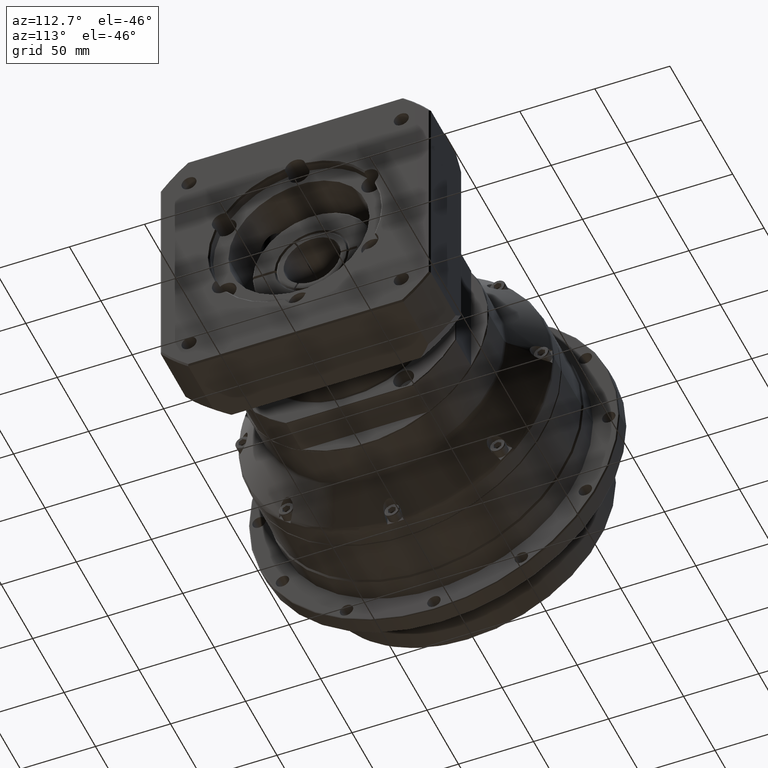
[diagram: clean part render]
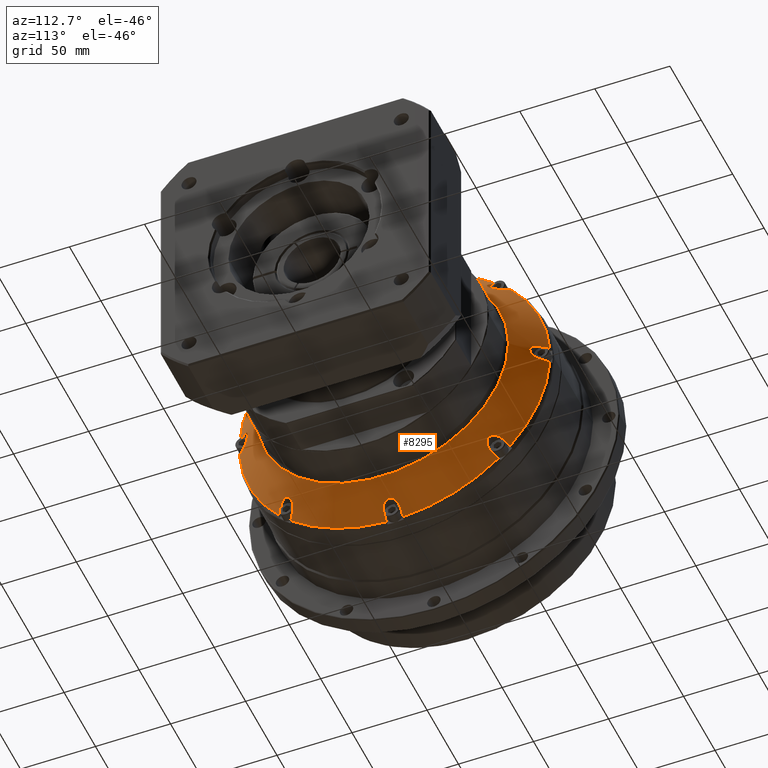
[diagram: same view with one face highlighted and labeled with its STEP entity id]
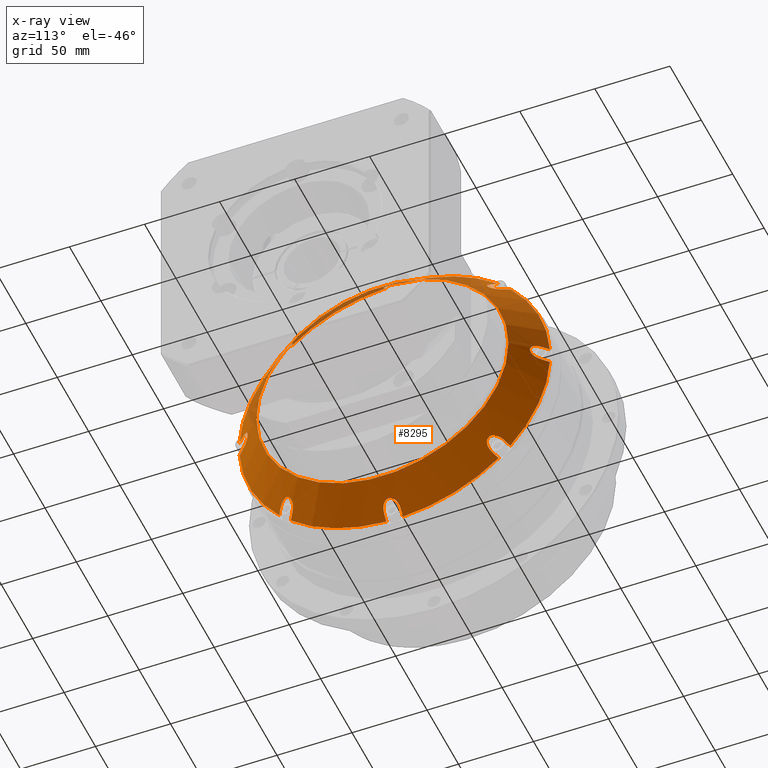
[diagram: x-ray of the same camera — body ghosted, the highlighted face saturated]
A machine part, auxiliary view. The second image highlights one B-rep face of the part: STEP entity #8295.
The next image is the same camera in x-ray: the body ghosted, the highlighted face saturated — about 6% of this face is hidden behind the body in this view.
In plain terms, the highlighted conical surface has half-angle 45 deg.
Its self-contained STEP definition (entity closure, byte-faithful):
#72=B_SPLINE_CURVE_WITH_KNOTS('',3,(#13886,#13887,#13888,#13889,#13890,
#13891,#13892,#13893,#13894,#13895,#13896,#13897,#13898,#13899,#13900,#13901,
#13902,#13903,#13904,#13905,#13906,#13907,#13908),.UNSPECIFIED.,.F.,.F.,
(4,3,2,2,2,2,2,2,2,2,4),(-0.0425009970683237,0.,0.289864522481326,0.579729044962652,
0.776643462004184,0.973557879045716,1.17047229608725,1.36738671312878,1.65725123561011,
1.94711575809143,1.98961675508284),.UNSPECIFIED.);
#74=B_SPLINE_CURVE_WITH_KNOTS('',3,(#13936,#13937,#13938,#13939,#13940,
#13941,#13942,#13943,#13944,#13945,#13946,#13947,#13948,#13949,#13950,#13951,
#13952,#13953,#13954,#13955,#13956,#13957,#13958),.UNSPECIFIED.,.F.,.F.,
(4,3,2,2,2,2,2,2,2,2,4),(-0.0425009970683224,0.,0.289864522481327,0.579729044962654,
0.776643462004186,0.973557879045718,1.17047229608725,1.36738671312878,1.65725123561011,
1.94711575809143,1.98961675508284),.UNSPECIFIED.);
#75=B_SPLINE_CURVE_WITH_KNOTS('',3,(#13971,#13972,#13973,#13974,#13975,
#13976,#13977,#13978,#13979,#13980,#13981,#13982,#13983,#13984,#13985,#13986,
#13987,#13988,#13989,#13990,#13991,#13992,#13993),.UNSPECIFIED.,.F.,.F.,
(4,3,2,2,2,2,2,2,2,2,4),(-0.0425009970683213,0.,0.289864522481326,0.579729044962653,
0.776643462004185,0.973557879045717,1.17047229608725,1.36738671312878,1.65725123561011,
1.94711575809143,1.98961675508284),.UNSPECIFIED.);
#76=B_SPLINE_CURVE_WITH_KNOTS('',3,(#14005,#14006,#14007,#14008,#14009,
#14010,#14011,#14012,#14013,#14014,#14015,#14016,#14017,#14018,#14019,#14020,
#14021,#14022,#14023,#14024,#14025,#14026,#14027),.UNSPECIFIED.,.F.,.F.,
(4,3,2,2,2,2,2,2,2,2,4),(-0.0425009969914009,0.,0.289864522481327,0.579729044962653,
0.776643462004185,0.973557879045718,1.17047229608725,1.36738671312878,1.65725123561011,
1.94711575809144,1.98961675508284),.UNSPECIFIED.);
#77=B_SPLINE_CURVE_WITH_KNOTS('',3,(#14039,#14040,#14041,#14042,#14043,
#14044,#14045,#14046,#14047,#14048,#14049,#14050,#14051,#14052,#14053,#14054,
#14055,#14056,#14057,#14058,#14059,#14060,#14061),.UNSPECIFIED.,.F.,.F.,
(4,3,2,2,2,2,2,2,2,2,4),(-0.042500997068313,0.,0.289864522481327,0.579729044962653,
0.776643462004186,0.973557879045718,1.17047229608725,1.36738671312878,1.65725123561011,
1.94711575809144,1.98961675508283),.UNSPECIFIED.);
#78=B_SPLINE_CURVE_WITH_KNOTS('',3,(#14073,#14074,#14075,#14076,#14077,
#14078,#14079,#14080,#14081,#14082,#14083,#14084,#14085,#14086,#14087,#14088,
#14089,#14090,#14091,#14092,#14093,#14094,#14095),.UNSPECIFIED.,.F.,.F.,
(4,3,2,2,2,2,2,2,2,2,4),(-0.042500996991396,0.,0.289864522481326,0.579729044962653,
0.776643462004185,0.973557879045718,1.17047229608725,1.36738671312878,1.65725123561011,
1.94711575809144,1.98961675508283),.UNSPECIFIED.);
#79=B_SPLINE_CURVE_WITH_KNOTS('',3,(#14107,#14108,#14109,#14110,#14111,
#14112,#14113,#14114,#14115,#14116,#14117,#14118,#14119,#14120,#14121,#14122,
#14123,#14124,#14125,#14126,#14127,#14128,#14129),.UNSPECIFIED.,.F.,.F.,
(4,3,2,2,2,2,2,2,2,2,4),(-0.0425009970683134,0.,0.289864522481327,0.579729044962654,
0.776643462004186,0.973557879045718,1.17047229608725,1.36738671312878,1.65725123561011,
1.94711575809144,1.98961675508283),.UNSPECIFIED.);
#80=B_SPLINE_CURVE_WITH_KNOTS('',3,(#14141,#14142,#14143,#14144,#14145,
#14146,#14147,#14148,#14149,#14150,#14151,#14152,#14153,#14154,#14155,#14156,
#14157,#14158,#14159,#14160,#14161,#14162,#14163),.UNSPECIFIED.,.F.,.F.,
(4,3,2,2,2,2,2,2,2,2,4),(-0.0425009969914008,0.,0.289864522481327,0.579729044962654,
0.776643462004186,0.973557879045718,1.17047229608725,1.36738671312878,1.65725123561011,
1.94711575809144,1.98961675508284),.UNSPECIFIED.);
#142=(
BOUNDED_CURVE()
B_SPLINE_CURVE(2,(#13869,#13870,#13871),.UNSPECIFIED.,.F.,.F.)
B_SPLINE_CURVE_WITH_KNOTS((3,3),(0.,0.504855050353772),.UNSPECIFIED.)
CURVE()
GEOMETRIC_REPRESENTATION_ITEM()
RATIONAL_B_SPLINE_CURVE((1.,1.0010044951809,1.00164285958987))
REPRESENTATION_ITEM('')
);
#143=(
BOUNDED_CURVE()
B_SPLINE_CURVE(2,(#13918,#13919,#13920),.UNSPECIFIED.,.F.,.F.)
B_SPLINE_CURVE_WITH_KNOTS((3,3),(2.26532710315228,2.77018215351428),
 .UNSPECIFIED.)
CURVE()
GEOMETRIC_REPRESENTATION_ITEM()
RATIONAL_B_SPLINE_CURVE((1.00164285958043,1.00100449517514,1.))
REPRESENTATION_ITEM('')
);
#144=(
BOUNDED_CURVE()
B_SPLINE_CURVE(2,(#13932,#13933,#13934),.UNSPECIFIED.,.F.,.F.)
B_SPLINE_CURVE_WITH_KNOTS((3,3),(0.,0.549633215561377),.UNSPECIFIED.)
CURVE()
GEOMETRIC_REPRESENTATION_ITEM()
RATIONAL_B_SPLINE_CURVE((1.,1.00018325234429,1.))
REPRESENTATION_ITEM('')
);
#145=(
BOUNDED_CURVE()
B_SPLINE_CURVE(2,(#13960,#13961,#13962),.UNSPECIFIED.,.F.,.F.)
B_SPLINE_CURVE_WITH_KNOTS((3,3),(0.,0.549633215561375),.UNSPECIFIED.)
CURVE()
GEOMETRIC_REPRESENTATION_ITEM()
RATIONAL_B_SPLINE_CURVE((1.,1.00018325715637,1.))
REPRESENTATION_ITEM('')
);
#146=(
BOUNDED_CURVE()
B_SPLINE_CURVE(2,(#13967,#13968,#13969),.UNSPECIFIED.,.F.,.F.)
B_SPLINE_CURVE_WITH_KNOTS((3,3),(0.,0.549633215561375),.UNSPECIFIED.)
CURVE()
GEOMETRIC_REPRESENTATION_ITEM()
RATIONAL_B_SPLINE_CURVE((1.,1.0001832515814,1.))
REPRESENTATION_ITEM('')
);
#147=(
BOUNDED_CURVE()
B_SPLINE_CURVE(2,(#13995,#13996,#13997),.UNSPECIFIED.,.F.,.F.)
B_SPLINE_CURVE_WITH_KNOTS((3,3),(0.,0.549633215561376),.UNSPECIFIED.)
CURVE()
GEOMETRIC_REPRESENTATION_ITEM()
RATIONAL_B_SPLINE_CURVE((1.,1.00018325325829,1.))
REPRESENTATION_ITEM('')
);
#148=(
BOUNDED_CURVE()
B_SPLINE_CURVE(2,(#14001,#14002,#14003),.UNSPECIFIED.,.F.,.F.)
B_SPLINE_CURVE_WITH_KNOTS((3,3),(0.,0.549633215561378),.UNSPECIFIED.)
CURVE()
GEOMETRIC_REPRESENTATION_ITEM()
RATIONAL_B_SPLINE_CURVE((1.,1.00018325117333,1.))
REPRESENTATION_ITEM('')
);
#149=(
BOUNDED_CURVE()
B_SPLINE_CURVE(2,(#14029,#14030,#14031),.UNSPECIFIED.,.F.,.F.)
B_SPLINE_CURVE_WITH_KNOTS((3,3),(0.,0.549633215561377),.UNSPECIFIED.)
CURVE()
GEOMETRIC_REPRESENTATION_ITEM()
RATIONAL_B_SPLINE_CURVE((1.,1.00018325133017,1.))
REPRESENTATION_ITEM('')
);
#150=(
BOUNDED_CURVE()
B_SPLINE_CURVE(2,(#14035,#14036,#14037),.UNSPECIFIED.,.F.,.F.)
B_SPLINE_CURVE_WITH_KNOTS((3,3),(0.,0.549633215561375),.UNSPECIFIED.)
CURVE()
GEOMETRIC_REPRESENTATION_ITEM()
RATIONAL_B_SPLINE_CURVE((1.,1.00018325295318,1.))
REPRESENTATION_ITEM('')
);
#151=(
BOUNDED_CURVE()
B_SPLINE_CURVE(2,(#14063,#14064,#14065),.UNSPECIFIED.,.F.,.F.)
B_SPLINE_CURVE_WITH_KNOTS((3,3),(0.,0.549633215561377),.UNSPECIFIED.)
CURVE()
GEOMETRIC_REPRESENTATION_ITEM()
RATIONAL_B_SPLINE_CURVE((1.,1.00018325366417,1.))
REPRESENTATION_ITEM('')
);
#152=(
BOUNDED_CURVE()
B_SPLINE_CURVE(2,(#14069,#14070,#14071),.UNSPECIFIED.,.F.,.F.)
B_SPLINE_CURVE_WITH_KNOTS((3,3),(0.,0.549633215561377),.UNSPECIFIED.)
CURVE()
GEOMETRIC_REPRESENTATION_ITEM()
RATIONAL_B_SPLINE_CURVE((1.,1.00018325155381,1.))
REPRESENTATION_ITEM('')
);
#153=(
BOUNDED_CURVE()
B_SPLINE_CURVE(2,(#14097,#14098,#14099),.UNSPECIFIED.,.F.,.F.)
B_SPLINE_CURVE_WITH_KNOTS((3,3),(0.,0.549633215561375),.UNSPECIFIED.)
CURVE()
GEOMETRIC_REPRESENTATION_ITEM()
RATIONAL_B_SPLINE_CURVE((1.,1.00018325047493,1.))
REPRESENTATION_ITEM('')
);
#154=(
BOUNDED_CURVE()
B_SPLINE_CURVE(2,(#14103,#14104,#14105),.UNSPECIFIED.,.F.,.F.)
B_SPLINE_CURVE_WITH_KNOTS((3,3),(0.,0.549633215561376),.UNSPECIFIED.)
CURVE()
GEOMETRIC_REPRESENTATION_ITEM()
RATIONAL_B_SPLINE_CURVE((1.,1.00018325227825,1.))
REPRESENTATION_ITEM('')
);
#155=(
BOUNDED_CURVE()
B_SPLINE_CURVE(2,(#14131,#14132,#14133),.UNSPECIFIED.,.F.,.F.)
B_SPLINE_CURVE_WITH_KNOTS((3,3),(0.,0.549633215561376),.UNSPECIFIED.)
CURVE()
GEOMETRIC_REPRESENTATION_ITEM()
RATIONAL_B_SPLINE_CURVE((1.,1.00018325167331,1.))
REPRESENTATION_ITEM('')
);
#156=(
BOUNDED_CURVE()
B_SPLINE_CURVE(2,(#14137,#14138,#14139),.UNSPECIFIED.,.F.,.F.)
B_SPLINE_CURVE_WITH_KNOTS((3,3),(0.,0.549633215561377),.UNSPECIFIED.)
CURVE()
GEOMETRIC_REPRESENTATION_ITEM()
RATIONAL_B_SPLINE_CURVE((1.,1.00018325131249,1.))
REPRESENTATION_ITEM('')
);
#157=(
BOUNDED_CURVE()
B_SPLINE_CURVE(2,(#14165,#14166,#14167),.UNSPECIFIED.,.F.,.F.)
B_SPLINE_CURVE_WITH_KNOTS((3,3),(0.,0.549633215561378),.UNSPECIFIED.)
CURVE()
GEOMETRIC_REPRESENTATION_ITEM()
RATIONAL_B_SPLINE_CURVE((1.,1.00018325028539,1.))
REPRESENTATION_ITEM('')
);
#1406=CONICAL_SURFACE('',#9210,93.75,45.);
#1847=FACE_BOUND('',#3112,.T.);
#2298=FACE_OUTER_BOUND('',#3111,.T.);
#3111=EDGE_LOOP('',(#6769));
#3112=EDGE_LOOP('',(#6770,#6771,#6772,#6773,#6774,#6775,#6776,#6777,#6778,
#6779,#6780,#6781,#6782,#6783,#6784,#6785,#6786,#6787,#6788,#6789,#6790,
#6791,#6792,#6793,#6794,#6795,#6796,#6797,#6798,#6799,#6800,#6801));
#3746=CIRCLE('',#9186,83.9644660940673);
#3756=CIRCLE('',#9211,103.535533905933);
#3757=CIRCLE('',#9212,103.535533905933);
#3758=CIRCLE('',#9213,103.535533905933);
#3759=CIRCLE('',#9214,103.535533905933);
#3760=CIRCLE('',#9215,103.535533905933);
#3761=CIRCLE('',#9216,103.535533905933);
#3762=CIRCLE('',#9217,103.535533905933);
#3763=CIRCLE('',#9218,103.535533905933);
#4334=VERTEX_POINT('',#13840);
#4342=VERTEX_POINT('',#13867);
#4343=VERTEX_POINT('',#13868);
#4346=VERTEX_POINT('',#13885);
#4349=VERTEX_POINT('',#13917);
#4350=VERTEX_POINT('',#13930);
#4351=VERTEX_POINT('',#13931);
#4352=VERTEX_POINT('',#13935);
#4353=VERTEX_POINT('',#13959);
#4354=VERTEX_POINT('',#13964);
#4355=VERTEX_POINT('',#13966);
#4356=VERTEX_POINT('',#13970);
#4357=VERTEX_POINT('',#13994);
#4358=VERTEX_POINT('',#13998);
#4359=VERTEX_POINT('',#14000);
#4360=VERTEX_POINT('',#14004);
#4361=VERTEX_POINT('',#14028);
#4362=VERTEX_POINT('',#14032);
#4363=VERTEX_POINT('',#14034);
#4364=VERTEX_POINT('',#14038);
#4365=VERTEX_POINT('',#14062);
#4366=VERTEX_POINT('',#14066);
#4367=VERTEX_POINT('',#14068);
#4368=VERTEX_POINT('',#14072);
#4369=VERTEX_POINT('',#14096);
#4370=VERTEX_POINT('',#14100);
#4371=VERTEX_POINT('',#14102);
#4372=VERTEX_POINT('',#14106);
#4373=VERTEX_POINT('',#14130);
#4374=VERTEX_POINT('',#14134);
#4375=VERTEX_POINT('',#14136);
#4376=VERTEX_POINT('',#14140);
#4377=VERTEX_POINT('',#14164);
#5214=EDGE_CURVE('',#4334,#4334,#3746,.T.);
#5222=EDGE_CURVE('',#4342,#4343,#142,.T.);
#5226=EDGE_CURVE('',#4343,#4346,#72,.T.);
#5231=EDGE_CURVE('',#4346,#4349,#143,.T.);
#5233=EDGE_CURVE('',#4350,#4351,#144,.T.);
#5234=EDGE_CURVE('',#4351,#4352,#74,.T.);
#5235=EDGE_CURVE('',#4352,#4353,#145,.T.);
#5236=EDGE_CURVE('',#4342,#4353,#3756,.T.);
#5237=EDGE_CURVE('',#4354,#4349,#3757,.T.);
#5238=EDGE_CURVE('',#4354,#4355,#146,.T.);
#5239=EDGE_CURVE('',#4355,#4356,#75,.T.);
#5240=EDGE_CURVE('',#4356,#4357,#147,.T.);
#5241=EDGE_CURVE('',#4358,#4357,#3758,.T.);
#5242=EDGE_CURVE('',#4358,#4359,#148,.T.);
#5243=EDGE_CURVE('',#4359,#4360,#76,.T.);
#5244=EDGE_CURVE('',#4360,#4361,#149,.T.);
#5245=EDGE_CURVE('',#4362,#4361,#3759,.T.);
#5246=EDGE_CURVE('',#4362,#4363,#150,.T.);
#5247=EDGE_CURVE('',#4363,#4364,#77,.T.);
#5248=EDGE_CURVE('',#4364,#4365,#151,.T.);
#5249=EDGE_CURVE('',#4366,#4365,#3760,.T.);
#5250=EDGE_CURVE('',#4366,#4367,#152,.T.);
#5251=EDGE_CURVE('',#4367,#4368,#78,.T.);
#5252=EDGE_CURVE('',#4368,#4369,#153,.T.);
#5253=EDGE_CURVE('',#4370,#4369,#3761,.T.);
#5254=EDGE_CURVE('',#4370,#4371,#154,.T.);
#5255=EDGE_CURVE('',#4371,#4372,#79,.T.);
#5256=EDGE_CURVE('',#4372,#4373,#155,.T.);
#5257=EDGE_CURVE('',#4374,#4373,#3762,.T.);
#5258=EDGE_CURVE('',#4374,#4375,#156,.T.);
#5259=EDGE_CURVE('',#4375,#4376,#80,.T.);
#5260=EDGE_CURVE('',#4376,#4377,#157,.T.);
#5261=EDGE_CURVE('',#4350,#4377,#3763,.T.);
#6769=ORIENTED_EDGE('',*,*,#5214,.F.);
#6770=ORIENTED_EDGE('',*,*,#5233,.T.);
#6771=ORIENTED_EDGE('',*,*,#5234,.T.);
#6772=ORIENTED_EDGE('',*,*,#5235,.T.);
#6773=ORIENTED_EDGE('',*,*,#5236,.F.);
#6774=ORIENTED_EDGE('',*,*,#5222,.T.);
#6775=ORIENTED_EDGE('',*,*,#5226,.T.);
#6776=ORIENTED_EDGE('',*,*,#5231,.T.);
#6777=ORIENTED_EDGE('',*,*,#5237,.F.);
#6778=ORIENTED_EDGE('',*,*,#5238,.T.);
#6779=ORIENTED_EDGE('',*,*,#5239,.T.);
#6780=ORIENTED_EDGE('',*,*,#5240,.T.);
#6781=ORIENTED_EDGE('',*,*,#5241,.F.);
#6782=ORIENTED_EDGE('',*,*,#5242,.T.);
#6783=ORIENTED_EDGE('',*,*,#5243,.T.);
#6784=ORIENTED_EDGE('',*,*,#5244,.T.);
#6785=ORIENTED_EDGE('',*,*,#5245,.F.);
#6786=ORIENTED_EDGE('',*,*,#5246,.T.);
#6787=ORIENTED_EDGE('',*,*,#5247,.T.);
#6788=ORIENTED_EDGE('',*,*,#5248,.T.);
#6789=ORIENTED_EDGE('',*,*,#5249,.F.);
#6790=ORIENTED_EDGE('',*,*,#5250,.T.);
#6791=ORIENTED_EDGE('',*,*,#5251,.T.);
#6792=ORIENTED_EDGE('',*,*,#5252,.T.);
#6793=ORIENTED_EDGE('',*,*,#5253,.F.);
#6794=ORIENTED_EDGE('',*,*,#5254,.T.);
#6795=ORIENTED_EDGE('',*,*,#5255,.T.);
#6796=ORIENTED_EDGE('',*,*,#5256,.T.);
#6797=ORIENTED_EDGE('',*,*,#5257,.F.);
#6798=ORIENTED_EDGE('',*,*,#5258,.T.);
#6799=ORIENTED_EDGE('',*,*,#5259,.T.);
#6800=ORIENTED_EDGE('',*,*,#5260,.T.);
#6801=ORIENTED_EDGE('',*,*,#5261,.F.);
#8295=ADVANCED_FACE('',(#2298,#1847),#1406,.T.);
#9186=AXIS2_PLACEMENT_3D('',#13841,#11007,#11008);
#9210=AXIS2_PLACEMENT_3D('',#13929,#11059,#11060);
#9211=AXIS2_PLACEMENT_3D('',#13963,#11061,#11062);
#9212=AXIS2_PLACEMENT_3D('',#13965,#11063,#11064);
#9213=AXIS2_PLACEMENT_3D('',#13999,#11065,#11066);
#9214=AXIS2_PLACEMENT_3D('',#14033,#11067,#11068);
#9215=AXIS2_PLACEMENT_3D('',#14067,#11069,#11070);
#9216=AXIS2_PLACEMENT_3D('',#14101,#11071,#11072);
#9217=AXIS2_PLACEMENT_3D('',#14135,#11073,#11074);
#9218=AXIS2_PLACEMENT_3D('',#14168,#11075,#11076);
#11007=DIRECTION('center_axis',(1.,-9.15914022456353E-17,-3.00786901807392E-15));
#11008=DIRECTION('ref_axis',(-9.15914022456279E-17,-1.,2.49075044382921E-15));
#11059=DIRECTION('center_axis',(-1.,1.87800945418359E-16,3.00786901807392E-15));
#11060=DIRECTION('ref_axis',(1.46940874591553E-16,1.,-2.46013427385053E-15));
#11061=DIRECTION('center_axis',(-1.,1.63184251332405E-16,3.09365390623676E-15));
#11062=DIRECTION('ref_axis',(-1.63184251332397E-16,-1.,2.49075044382921E-15));
#11063=DIRECTION('center_axis',(-1.,1.63184251332405E-16,3.09365390623676E-15));
#11064=DIRECTION('ref_axis',(-1.63184251332397E-16,-1.,2.49075044382921E-15));
#11065=DIRECTION('center_axis',(-1.,1.63184251332405E-16,3.09365390623676E-15));
#11066=DIRECTION('ref_axis',(-1.63184251332397E-16,-1.,2.49075044382921E-15));
#11067=DIRECTION('center_axis',(-1.,1.63184251332405E-16,3.09365390623676E-15));
#11068=DIRECTION('ref_axis',(-1.63184251332397E-16,-1.,2.49075044382921E-15));
#11069=DIRECTION('center_axis',(-1.,1.63184251332405E-16,3.09365390623676E-15));
#11070=DIRECTION('ref_axis',(-1.63184251332397E-16,-1.,2.49075044382921E-15));
#11071=DIRECTION('center_axis',(-1.,1.63184251332405E-16,3.09365390623676E-15));
#11072=DIRECTION('ref_axis',(-1.63184251332397E-16,-1.,2.49075044382921E-15));
#11073=DIRECTION('center_axis',(-1.,1.63184251332405E-16,3.09365390623676E-15));
#11074=DIRECTION('ref_axis',(-1.63184251332397E-16,-1.,2.49075044382921E-15));
#11075=DIRECTION('center_axis',(-1.,1.63184251332405E-16,3.09365390623676E-15));
#11076=DIRECTION('ref_axis',(-1.63184251332397E-16,-1.,2.49075044382921E-15));
#13840=CARTESIAN_POINT('',(103.788846638933,-31.4544714189949,173.743418071175));
#13841=CARTESIAN_POINT('Origin',(103.788846638933,-115.418937513062,173.743418071175));
#13867=CARTESIAN_POINT('',(84.2177788270676,-12.0295919247157,168.243418071175));
#13868=CARTESIAN_POINT('',(88.1014186215485,-15.9189375130622,168.243418071175));
#13869=CARTESIAN_POINT('Ctrl Pts',(84.2177788270675,-12.0295919247156,168.243418071175));
#13870=CARTESIAN_POINT('Ctrl Pts',(86.1968229982808,-14.0114343836653,168.243418071175));
#13871=CARTESIAN_POINT('Ctrl Pts',(88.1014186215485,-15.9189375130622,168.243418071175));
#13885=CARTESIAN_POINT('',(88.1014186215485,-15.9189375130622,179.243418071175));
#13886=CARTESIAN_POINT('Ctrl Pts',(88.1014186215485,-15.9189375130622,168.243418071175));
#13887=CARTESIAN_POINT('Ctrl Pts',(88.2038201005388,-16.0214953154864,168.243418071175));
#13888=CARTESIAN_POINT('Ctrl Pts',(88.3052632660613,-16.1229349623804,168.246289708681));
#13889=CARTESIAN_POINT('Ctrl Pts',(88.4054390768419,-16.2229576135647,168.251827065056));
#13890=CARTESIAN_POINT('Ctrl Pts',(89.0886563084151,-16.9051302688616,168.289592841675));
#13891=CARTESIAN_POINT('Ctrl Pts',(89.8298838190591,-17.6375029251579,168.463479687973));
#13892=CARTESIAN_POINT('Ctrl Pts',(91.2333762294539,-19.0088586464977,169.130002263738));
#13893=CARTESIAN_POINT('Ctrl Pts',(91.8958135101535,-19.6482128888993,169.621510782971));
#13894=CARTESIAN_POINT('Ctrl Pts',(92.793835807826,-20.5085340417453,170.663730891838));
#13895=CARTESIAN_POINT('Ctrl Pts',(93.1399229175765,-20.8378534967772,171.199244900773));
#13896=CARTESIAN_POINT('Ctrl Pts',(93.6208051159979,-21.2939567113273,172.410105139835));
#13897=CARTESIAN_POINT('Ctrl Pts',(93.7533127330003,-21.4189375130622,173.087036681037));
#13898=CARTESIAN_POINT('Ctrl Pts',(93.7533127330003,-21.4189375130622,174.399799461314));
#13899=CARTESIAN_POINT('Ctrl Pts',(93.6208051159979,-21.2939567113273,175.076731002515));
#13900=CARTESIAN_POINT('Ctrl Pts',(93.1399229175766,-20.8378534967772,176.287591241577));
#13901=CARTESIAN_POINT('Ctrl Pts',(92.793835807826,-20.5085340417453,176.823105250513));
#13902=CARTESIAN_POINT('Ctrl Pts',(91.8958135101535,-19.6482128888993,177.86532535938));
#13903=CARTESIAN_POINT('Ctrl Pts',(91.233376229454,-19.0088586464976,178.356833878612));
#13904=CARTESIAN_POINT('Ctrl Pts',(89.8298838190591,-17.6375029251579,179.023356454378));
#13905=CARTESIAN_POINT('Ctrl Pts',(89.0886563084151,-16.9051302688615,179.197243300675));
#13906=CARTESIAN_POINT('Ctrl Pts',(88.3052632662426,-16.1229349625613,179.240546433659));
#13907=CARTESIAN_POINT('Ctrl Pts',(88.2038201006898,-16.0214953156374,179.243418071175));
#13908=CARTESIAN_POINT('Ctrl Pts',(88.1014186215485,-15.9189375130622,179.243418071175));
#13917=CARTESIAN_POINT('',(84.2177788270676,-12.0295919247157,179.243418071175));
#13918=CARTESIAN_POINT('Ctrl Pts',(88.1014186215485,-15.9189375130622,179.243418071175));
#13919=CARTESIAN_POINT('Ctrl Pts',(86.1968229982642,-14.0114343836485,179.243418071175));
#13920=CARTESIAN_POINT('Ctrl Pts',(84.2177788270675,-12.0295919247156,179.243418071175));
#13929=CARTESIAN_POINT('Origin',(94.0033127330003,-115.418937513062,173.743418071175));
#13930=CARTESIAN_POINT('',(84.2177788270674,-46.2007174416291,96.7470234066899));
#13931=CARTESIAN_POINT('',(88.1014186215483,-48.9509000815269,99.4972060465877));
#13932=CARTESIAN_POINT('Ctrl Pts',(84.2177788270672,-46.2007174416291,96.7470234066898));
#13933=CARTESIAN_POINT('Ctrl Pts',(86.1968230644929,-47.6020917304838,98.1483976955446));
#13934=CARTESIAN_POINT('Ctrl Pts',(88.1014186215483,-48.9509000815269,99.4972060465877));
#13935=CARTESIAN_POINT('',(88.1014186215483,-41.1727254884749,107.27538063964));
#13936=CARTESIAN_POINT('Ctrl Pts',(88.1014186215483,-48.950900081527,99.4972060465877));
#13937=CARTESIAN_POINT('Ctrl Pts',(88.2038201005386,-49.0234193990847,99.5697253641454));
#13938=CARTESIAN_POINT('Ctrl Pts',(88.305263266061,-49.0931175069311,99.6434845806988));
#13939=CARTESIAN_POINT('Ctrl Pts',(88.4054390768417,-49.1599286996133,99.718126777866));
#13940=CARTESIAN_POINT('Ctrl Pts',(89.0886563084149,-49.6155931733692,100.227200125111));
#13941=CARTESIAN_POINT('Ctrl Pts',(89.8298838190589,-50.0105022768161,100.86802236491));
#13942=CARTESIAN_POINT('Ctrl Pts',(91.2333762294537,-50.5088945736567,102.309019928026));
#13943=CARTESIAN_POINT('Ctrl Pts',(91.8958135101533,-50.6134372870789,103.108660655369));
#13944=CARTESIAN_POINT('Ctrl Pts',(92.7938358078258,-50.4848153017857,104.453960483013));
#13945=CARTESIAN_POINT('Ctrl Pts',(93.1399229175764,-50.3390137344768,105.065490089981));
#13946=CARTESIAN_POINT('Ctrl Pts',(93.6208051159977,-49.805319924296,106.244211252021));
#13947=CARTESIAN_POINT('Ctrl Pts',(93.7533127330001,-49.4150318135385,106.811248907628));
#13948=CARTESIAN_POINT('Ctrl Pts',(93.7533127330001,-48.4867683495154,107.739512371651));
#13949=CARTESIAN_POINT('Ctrl Pts',(93.6208051159977,-47.919730693908,108.129800482409));
#13950=CARTESIAN_POINT('Ctrl Pts',(93.1399229175764,-46.7410095318686,108.66349429259));
#13951=CARTESIAN_POINT('Ctrl Pts',(92.7938358078258,-46.1294799249002,108.809295859898));
#13952=CARTESIAN_POINT('Ctrl Pts',(91.8958135101533,-44.7841800972558,108.937917845192));
#13953=CARTESIAN_POINT('Ctrl Pts',(91.2333762294537,-43.9845393699128,108.83337513177));
#13954=CARTESIAN_POINT('Ctrl Pts',(89.8298838190589,-42.5435418067968,108.334982834929));
#13955=CARTESIAN_POINT('Ctrl Pts',(89.0886563084149,-41.9027195669982,107.940073731482));
#13956=CARTESIAN_POINT('Ctrl Pts',(88.3052632662424,-41.3190040227211,107.417598065165));
#13957=CARTESIAN_POINT('Ctrl Pts',(88.2038201006895,-41.2452448061394,107.347899957304));
#13958=CARTESIAN_POINT('Ctrl Pts',(88.1014186215483,-41.1727254884749,107.27538063964));
#13959=CARTESIAN_POINT('',(84.2177788270674,-38.4225428485771,104.525197999742));
#13960=CARTESIAN_POINT('Ctrl Pts',(88.1014186215483,-41.1727254884749,107.27538063964));
#13961=CARTESIAN_POINT('Ctrl Pts',(86.1968232036312,-39.823917235962,105.926572387127));
#13962=CARTESIAN_POINT('Ctrl Pts',(84.2177788270673,-38.4225428485771,104.525197999742));
#13963=CARTESIAN_POINT('Origin',(84.2177788270676,-115.418937513062,173.743418071175));
#13964=CARTESIAN_POINT('',(84.2177788270678,-38.4225428485767,242.961638142608));
#13965=CARTESIAN_POINT('Origin',(84.2177788270676,-115.418937513062,173.743418071175));
#13966=CARTESIAN_POINT('',(88.1014186215487,-41.1727254884745,240.211455502711));
#13967=CARTESIAN_POINT('Ctrl Pts',(84.2177788270677,-38.4225428485767,242.961638142609));
#13968=CARTESIAN_POINT('Ctrl Pts',(86.1968229733703,-39.8239170729029,241.560263918282));
#13969=CARTESIAN_POINT('Ctrl Pts',(88.1014186215487,-41.1727254884746,240.211455502711));
#13970=CARTESIAN_POINT('',(88.1014186215487,-48.9509000815265,247.989630095763));
#13971=CARTESIAN_POINT('Ctrl Pts',(88.1014186215487,-41.1727254884745,240.211455502711));
#13972=CARTESIAN_POINT('Ctrl Pts',(88.203820100539,-41.2452448060322,240.138936185153));
#13973=CARTESIAN_POINT('Ctrl Pts',(88.3052632660615,-41.3190040225857,240.069238077307));
#13974=CARTESIAN_POINT('Ctrl Pts',(88.4054390768421,-41.3936462197529,240.002426884624));
#13975=CARTESIAN_POINT('Ctrl Pts',(89.0886563084153,-41.9027195669978,239.546762410868));
#13976=CARTESIAN_POINT('Ctrl Pts',(89.8298838190593,-42.5435418067964,239.151853307422));
#13977=CARTESIAN_POINT('Ctrl Pts',(91.2333762294541,-43.9845393699124,238.653461010581));
#13978=CARTESIAN_POINT('Ctrl Pts',(91.8958135101537,-44.7841800972554,238.548918297159));
#13979=CARTESIAN_POINT('Ctrl Pts',(92.7938358078262,-46.1294799248998,238.677540282452));
#13980=CARTESIAN_POINT('Ctrl Pts',(93.1399229175768,-46.7410095318683,238.823341849761));
#13981=CARTESIAN_POINT('Ctrl Pts',(93.6208051159981,-47.9197306939077,239.357035659942));
#13982=CARTESIAN_POINT('Ctrl Pts',(93.7533127330005,-48.486768349515,239.747323770699));
#13983=CARTESIAN_POINT('Ctrl Pts',(93.7533127330005,-49.4150318135381,240.675587234722));
#13984=CARTESIAN_POINT('Ctrl Pts',(93.6208051159981,-49.8053199242956,241.24262489033));
#13985=CARTESIAN_POINT('Ctrl Pts',(93.1399229175768,-50.3390137344764,242.421346052369));
#13986=CARTESIAN_POINT('Ctrl Pts',(92.7938358078262,-50.4848153017854,243.032875659337));
#13987=CARTESIAN_POINT('Ctrl Pts',(91.8958135101537,-50.6134372870785,244.378175486982));
#13988=CARTESIAN_POINT('Ctrl Pts',(91.2333762294541,-50.5088945736564,245.177816214325));
#13989=CARTESIAN_POINT('Ctrl Pts',(89.8298838190593,-50.0105022768157,246.618813777441));
#13990=CARTESIAN_POINT('Ctrl Pts',(89.0886563084153,-49.6155931733688,247.259636017239));
#13991=CARTESIAN_POINT('Ctrl Pts',(88.3052632662428,-49.0931175070516,247.843351561517));
#13992=CARTESIAN_POINT('Ctrl Pts',(88.20382010069,-49.0234193991911,247.917110778098));
#13993=CARTESIAN_POINT('Ctrl Pts',(88.1014186215487,-48.9509000815265,247.989630095763));
#13994=CARTESIAN_POINT('',(84.2177788270678,-46.2007174416287,250.739812735661));
#13995=CARTESIAN_POINT('Ctrl Pts',(88.1014186215487,-48.9509000815265,247.989630095763));
#13996=CARTESIAN_POINT('Ctrl Pts',(86.1968230698211,-47.6020917342561,249.338438443033));
#13997=CARTESIAN_POINT('Ctrl Pts',(84.2177788270677,-46.2007174416287,250.739812735661));
#13998=CARTESIAN_POINT('',(84.2177788270679,-109.918937513062,277.132763659522));
#13999=CARTESIAN_POINT('Origin',(84.2177788270676,-115.418937513062,173.743418071175));
#14000=CARTESIAN_POINT('',(88.1014186215488,-109.918937513062,273.243418071175));
#14001=CARTESIAN_POINT('Ctrl Pts',(84.2177788270678,-109.918937513062,277.132763659522));
#14002=CARTESIAN_POINT('Ctrl Pts',(86.1968229511075,-109.918937513062,275.150921247815));
#14003=CARTESIAN_POINT('Ctrl Pts',(88.1014186215488,-109.918937513062,273.243418071175));
#14004=CARTESIAN_POINT('',(88.1014186215488,-120.918937513062,273.243418071175));
#14005=CARTESIAN_POINT('Ctrl Pts',(88.1014186215488,-109.918937513062,273.243418071175));
#14006=CARTESIAN_POINT('Ctrl Pts',(88.20382010069,-109.918937513062,273.1408602686));
#14007=CARTESIAN_POINT('Ctrl Pts',(88.3052632662428,-109.921809150578,273.039420621676));
#14008=CARTESIAN_POINT('Ctrl Pts',(88.4054390768422,-109.927346506943,272.939397970673));
#14009=CARTESIAN_POINT('Ctrl Pts',(89.0886563084154,-109.965112283562,272.257225315376));
#14010=CARTESIAN_POINT('Ctrl Pts',(89.8298838190593,-110.138999129859,271.52485265908));
#14011=CARTESIAN_POINT('Ctrl Pts',(91.2333762294542,-110.805521705625,270.15349693774));
#14012=CARTESIAN_POINT('Ctrl Pts',(91.8958135101537,-111.297030224858,269.514142695338));
#14013=CARTESIAN_POINT('Ctrl Pts',(92.7938358078262,-112.339250333725,268.653821542492));
#14014=CARTESIAN_POINT('Ctrl Pts',(93.1399229175768,-112.87476434266,268.32450208746));
#14015=CARTESIAN_POINT('Ctrl Pts',(93.6208051159982,-114.085624581722,267.86839887291));
#14016=CARTESIAN_POINT('Ctrl Pts',(93.7533127330006,-114.762556122924,267.743418071175));
#14017=CARTESIAN_POINT('Ctrl Pts',(93.7533127330006,-116.0753189032,267.743418071175));
#14018=CARTESIAN_POINT('Ctrl Pts',(93.6208051159982,-116.752250444402,267.86839887291));
#14019=CARTESIAN_POINT('Ctrl Pts',(93.1399229175768,-117.963110683464,268.32450208746));
#14020=CARTESIAN_POINT('Ctrl Pts',(92.7938358078262,-118.498624692399,268.653821542492));
#14021=CARTESIAN_POINT('Ctrl Pts',(91.8958135101537,-119.540844801266,269.514142695338));
#14022=CARTESIAN_POINT('Ctrl Pts',(91.2333762294542,-120.032353320499,270.15349693774));
#14023=CARTESIAN_POINT('Ctrl Pts',(89.8298838190593,-120.698875896265,271.52485265908));
#14024=CARTESIAN_POINT('Ctrl Pts',(89.0886563084153,-120.872762742562,272.257225315376));
#14025=CARTESIAN_POINT('Ctrl Pts',(88.3052632662428,-120.916065875546,273.039420621676));
#14026=CARTESIAN_POINT('Ctrl Pts',(88.20382010069,-120.918937513062,273.1408602686));
#14027=CARTESIAN_POINT('Ctrl Pts',(88.1014186215488,-120.918937513062,273.243418071175));
#14028=CARTESIAN_POINT('',(84.2177788270679,-120.918937513062,277.132763659522));
#14029=CARTESIAN_POINT('Ctrl Pts',(88.1014186215489,-120.918937513062,273.243418071175));
#14030=CARTESIAN_POINT('Ctrl Pts',(86.1968229512666,-120.918937513062,275.150921247656));
#14031=CARTESIAN_POINT('Ctrl Pts',(84.2177788270678,-120.918937513062,277.132763659522));
#14032=CARTESIAN_POINT('',(84.2177788270679,-184.637157584495,250.739812735661));
#14033=CARTESIAN_POINT('Origin',(84.2177788270676,-115.418937513062,173.743418071175));
#14034=CARTESIAN_POINT('',(88.1014186215488,-181.886974944597,247.989630095763));
#14035=CARTESIAN_POINT('Ctrl Pts',(84.2177788270678,-184.637157584495,250.739812735661));
#14036=CARTESIAN_POINT('Ctrl Pts',(86.1968230725455,-183.235783289939,249.338438441104));
#14037=CARTESIAN_POINT('Ctrl Pts',(88.1014186215488,-181.886974944597,247.989630095763));
#14038=CARTESIAN_POINT('',(88.1014186215488,-189.66514953765,240.211455502711));
#14039=CARTESIAN_POINT('Ctrl Pts',(88.1014186215487,-181.886974944597,247.989630095763));
#14040=CARTESIAN_POINT('Ctrl Pts',(88.203820100539,-181.81445562704,247.917110778205));
#14041=CARTESIAN_POINT('Ctrl Pts',(88.3052632660614,-181.744757519193,247.843351561652));
#14042=CARTESIAN_POINT('Ctrl Pts',(88.4054390768421,-181.677946326511,247.768709364485));
#14043=CARTESIAN_POINT('Ctrl Pts',(89.0886563084153,-181.222281852755,247.25963601724));
#14044=CARTESIAN_POINT('Ctrl Pts',(89.8298838190592,-180.827372749308,246.618813777441));
#14045=CARTESIAN_POINT('Ctrl Pts',(91.2333762294541,-180.328980452468,245.177816214325));
#14046=CARTESIAN_POINT('Ctrl Pts',(91.8958135101536,-180.224437739046,244.378175486982));
#14047=CARTESIAN_POINT('Ctrl Pts',(92.7938358078261,-180.353059724339,243.032875659338));
#14048=CARTESIAN_POINT('Ctrl Pts',(93.1399229175767,-180.498861291648,242.421346052369));
#14049=CARTESIAN_POINT('Ctrl Pts',(93.6208051159981,-181.032555101828,241.24262489033));
#14050=CARTESIAN_POINT('Ctrl Pts',(93.7533127330004,-181.422843212586,240.675587234723));
#14051=CARTESIAN_POINT('Ctrl Pts',(93.7533127330004,-182.351106676609,239.747323770699));
#14052=CARTESIAN_POINT('Ctrl Pts',(93.6208051159981,-182.918144332216,239.357035659942));
#14053=CARTESIAN_POINT('Ctrl Pts',(93.1399229175767,-184.096865494256,238.823341849761));
#14054=CARTESIAN_POINT('Ctrl Pts',(92.7938358078261,-184.708395101224,238.677540282452));
#14055=CARTESIAN_POINT('Ctrl Pts',(91.8958135101536,-186.053694928869,238.548918297159));
#14056=CARTESIAN_POINT('Ctrl Pts',(91.2333762294541,-186.853335656212,238.653461010581));
#14057=CARTESIAN_POINT('Ctrl Pts',(89.8298838190592,-188.294333219328,239.151853307422));
#14058=CARTESIAN_POINT('Ctrl Pts',(89.0886563084152,-188.935155459126,239.546762410869));
#14059=CARTESIAN_POINT('Ctrl Pts',(88.3052632662427,-189.518871003403,240.069238077186));
#14060=CARTESIAN_POINT('Ctrl Pts',(88.2038201006899,-189.592630219985,240.138936185046));
#14061=CARTESIAN_POINT('Ctrl Pts',(88.1014186215487,-189.665149537649,240.211455502711));
#14062=CARTESIAN_POINT('',(84.2177788270679,-192.415332177547,242.961638142609));
#14063=CARTESIAN_POINT('Ctrl Pts',(88.1014186215488,-189.665149537649,240.211455502711));
#14064=CARTESIAN_POINT('Ctrl Pts',(86.1968231355421,-191.01395783838,241.560263803441));
#14065=CARTESIAN_POINT('Ctrl Pts',(84.2177788270677,-192.415332177547,242.961638142609));
#14066=CARTESIAN_POINT('',(84.2177788270677,-218.808283101409,179.243418071176));
#14067=CARTESIAN_POINT('Origin',(84.2177788270676,-115.418937513062,173.743418071175));
#14068=CARTESIAN_POINT('',(88.1014186215486,-214.918937513062,179.243418071176));
#14069=CARTESIAN_POINT('Ctrl Pts',(84.2177788270676,-218.808283101409,179.243418071176));
#14070=CARTESIAN_POINT('Ctrl Pts',(86.196822951342,-216.826440689467,179.243418071176));
#14071=CARTESIAN_POINT('Ctrl Pts',(88.1014186215486,-214.918937513062,179.243418071176));
#14072=CARTESIAN_POINT('',(88.1014186215486,-214.918937513062,168.243418071176));
#14073=CARTESIAN_POINT('Ctrl Pts',(88.1014186215485,-214.918937513062,179.243418071176));
#14074=CARTESIAN_POINT('Ctrl Pts',(88.2038201006897,-214.816379710487,179.243418071176));
#14075=CARTESIAN_POINT('Ctrl Pts',(88.3052632662425,-214.714940063563,179.24054643366));
#14076=CARTESIAN_POINT('Ctrl Pts',(88.4054390768419,-214.61491741256,179.235009077295));
#14077=CARTESIAN_POINT('Ctrl Pts',(89.088656308415,-213.932744757263,179.197243300675));
#14078=CARTESIAN_POINT('Ctrl Pts',(89.829883819059,-213.200372100967,179.023356454378));
#14079=CARTESIAN_POINT('Ctrl Pts',(91.2333762294539,-211.829016379627,178.356833878613));
#14080=CARTESIAN_POINT('Ctrl Pts',(91.8958135101534,-211.189662137225,177.86532535938));
#14081=CARTESIAN_POINT('Ctrl Pts',(92.7938358078259,-210.329340984379,176.823105250513));
#14082=CARTESIAN_POINT('Ctrl Pts',(93.1399229175765,-210.000021529347,176.287591241578));
#14083=CARTESIAN_POINT('Ctrl Pts',(93.6208051159979,-209.543918314797,175.076731002515));
#14084=CARTESIAN_POINT('Ctrl Pts',(93.7533127330002,-209.418937513062,174.399799461314));
#14085=CARTESIAN_POINT('Ctrl Pts',(93.7533127330002,-209.418937513062,173.087036681037));
#14086=CARTESIAN_POINT('Ctrl Pts',(93.6208051159978,-209.543918314797,172.410105139836));
#14087=CARTESIAN_POINT('Ctrl Pts',(93.1399229175765,-210.000021529347,171.199244900774));
#14088=CARTESIAN_POINT('Ctrl Pts',(92.7938358078259,-210.329340984379,170.663730891838));
#14089=CARTESIAN_POINT('Ctrl Pts',(91.8958135101534,-211.189662137225,169.621510782971));
#14090=CARTESIAN_POINT('Ctrl Pts',(91.2333762294538,-211.829016379627,169.130002263739));
#14091=CARTESIAN_POINT('Ctrl Pts',(89.829883819059,-213.200372100967,168.463479687973));
#14092=CARTESIAN_POINT('Ctrl Pts',(89.088656308415,-213.932744757263,168.289592841676));
#14093=CARTESIAN_POINT('Ctrl Pts',(88.3052632662425,-214.714940063563,168.246289708692));
#14094=CARTESIAN_POINT('Ctrl Pts',(88.2038201006897,-214.816379710487,168.243418071176));
#14095=CARTESIAN_POINT('Ctrl Pts',(88.1014186215484,-214.918937513062,168.243418071176));
#14096=CARTESIAN_POINT('',(84.2177788270676,-218.808283101409,168.243418071176));
#14097=CARTESIAN_POINT('Ctrl Pts',(88.1014186215486,-214.918937513062,168.243418071176));
#14098=CARTESIAN_POINT('Ctrl Pts',(86.1968229515616,-216.826440689247,168.243418071176));
#14099=CARTESIAN_POINT('Ctrl Pts',(84.2177788270675,-218.808283101409,168.243418071176));
#14100=CARTESIAN_POINT('',(84.2177788270675,-192.415332177548,104.525197999742));
#14101=CARTESIAN_POINT('Origin',(84.2177788270676,-115.418937513062,173.743418071175));
#14102=CARTESIAN_POINT('',(88.1014186215484,-189.66514953765,107.27538063964));
#14103=CARTESIAN_POINT('Ctrl Pts',(84.2177788270673,-192.415332177548,104.525197999742));
#14104=CARTESIAN_POINT('Ctrl Pts',(86.1968229991052,-191.013957934997,105.926572242293));
#14105=CARTESIAN_POINT('Ctrl Pts',(88.1014186215484,-189.66514953765,107.27538063964));
#14106=CARTESIAN_POINT('',(88.1014186215483,-181.886974944598,99.497206046588));
#14107=CARTESIAN_POINT('Ctrl Pts',(88.1014186215483,-189.66514953765,107.27538063964));
#14108=CARTESIAN_POINT('Ctrl Pts',(88.2038201005386,-189.592630220092,107.347899957198));
#14109=CARTESIAN_POINT('Ctrl Pts',(88.305263266061,-189.518871003539,107.417598065044));
#14110=CARTESIAN_POINT('Ctrl Pts',(88.4054390768417,-189.444228806372,107.484409257726));
#14111=CARTESIAN_POINT('Ctrl Pts',(89.0886563084148,-188.935155459127,107.940073731482));
#14112=CARTESIAN_POINT('Ctrl Pts',(89.8298838190588,-188.294333219328,108.334982834929));
#14113=CARTESIAN_POINT('Ctrl Pts',(91.2333762294537,-186.853335656212,108.83337513177));
#14114=CARTESIAN_POINT('Ctrl Pts',(91.8958135101532,-186.053694928869,108.937917845192));
#14115=CARTESIAN_POINT('Ctrl Pts',(92.7938358078257,-184.708395101225,108.809295859899));
#14116=CARTESIAN_POINT('Ctrl Pts',(93.1399229175763,-184.096865494256,108.66349429259));
#14117=CARTESIAN_POINT('Ctrl Pts',(93.6208051159977,-182.918144332217,108.129800482409));
#14118=CARTESIAN_POINT('Ctrl Pts',(93.753312733,-182.351106676609,107.739512371652));
#14119=CARTESIAN_POINT('Ctrl Pts',(93.753312733,-181.422843212586,106.811248907629));
#14120=CARTESIAN_POINT('Ctrl Pts',(93.6208051159977,-181.032555101829,106.244211252021));
#14121=CARTESIAN_POINT('Ctrl Pts',(93.1399229175763,-180.498861291648,105.065490089982));
#14122=CARTESIAN_POINT('Ctrl Pts',(92.7938358078257,-180.353059724339,104.453960483013));
#14123=CARTESIAN_POINT('Ctrl Pts',(91.8958135101532,-180.224437739046,103.108660655369));
#14124=CARTESIAN_POINT('Ctrl Pts',(91.2333762294536,-180.328980452468,102.309019928026));
#14125=CARTESIAN_POINT('Ctrl Pts',(89.8298838190588,-180.827372749309,100.86802236491));
#14126=CARTESIAN_POINT('Ctrl Pts',(89.0886563084148,-181.222281852756,100.227200125111));
#14127=CARTESIAN_POINT('Ctrl Pts',(88.3052632662423,-181.744757519073,99.6434845808343));
#14128=CARTESIAN_POINT('Ctrl Pts',(88.2038201006895,-181.814455626933,99.5697253642526));
#14129=CARTESIAN_POINT('Ctrl Pts',(88.1014186215483,-181.886974944598,99.4972060465881));
#14130=CARTESIAN_POINT('',(84.2177788270674,-184.637157584496,96.7470234066903));
#14131=CARTESIAN_POINT('Ctrl Pts',(88.1014186215484,-181.886974944598,99.4972060465881));
#14132=CARTESIAN_POINT('Ctrl Pts',(86.1968229989689,-183.235783342042,98.1483976491443));
#14133=CARTESIAN_POINT('Ctrl Pts',(84.2177788270673,-184.637157584496,96.7470234066903));
#14134=CARTESIAN_POINT('',(84.2177788270673,-120.918937513062,70.3540724828289));
#14135=CARTESIAN_POINT('Origin',(84.2177788270676,-115.418937513062,173.743418071175));
#14136=CARTESIAN_POINT('',(88.1014186215482,-120.918937513062,74.2434180711754));
#14137=CARTESIAN_POINT('Ctrl Pts',(84.2177788270672,-120.918937513062,70.3540724828289));
#14138=CARTESIAN_POINT('Ctrl Pts',(86.196822951266,-120.918937513062,72.3359148946947));
#14139=CARTESIAN_POINT('Ctrl Pts',(88.1014186215482,-120.918937513062,74.2434180711754));
#14140=CARTESIAN_POINT('',(88.1014186215482,-109.918937513062,74.2434180711753));
#14141=CARTESIAN_POINT('Ctrl Pts',(88.1014186215482,-120.918937513062,74.2434180711754));
#14142=CARTESIAN_POINT('Ctrl Pts',(88.2038201006894,-120.918937513062,74.3459758737507));
#14143=CARTESIAN_POINT('Ctrl Pts',(88.3052632662422,-120.916065875547,74.4474155206746));
#14144=CARTESIAN_POINT('Ctrl Pts',(88.4054390768416,-120.910528519182,74.5474381716779));
#14145=CARTESIAN_POINT('Ctrl Pts',(89.0886563084148,-120.872762742562,75.2296108269747));
#14146=CARTESIAN_POINT('Ctrl Pts',(89.8298838190588,-120.698875896265,75.961983483271));
#14147=CARTESIAN_POINT('Ctrl Pts',(91.2333762294536,-120.0323533205,77.3333392046108));
#14148=CARTESIAN_POINT('Ctrl Pts',(91.8958135101531,-119.540844801267,77.9726934470124));
#14149=CARTESIAN_POINT('Ctrl Pts',(92.7938358078256,-118.4986246924,78.8330145998584));
#14150=CARTESIAN_POINT('Ctrl Pts',(93.1399229175763,-117.963110683464,79.1623340548904));
#14151=CARTESIAN_POINT('Ctrl Pts',(93.6208051159976,-116.752250444402,79.6184372694404));
#14152=CARTESIAN_POINT('Ctrl Pts',(93.753312733,-116.075318903201,79.7434180711753));
#14153=CARTESIAN_POINT('Ctrl Pts',(93.753312733,-114.762556122924,79.7434180711753));
#14154=CARTESIAN_POINT('Ctrl Pts',(93.6208051159976,-114.085624581723,79.6184372694404));
#14155=CARTESIAN_POINT('Ctrl Pts',(93.1399229175763,-112.874764342661,79.1623340548903));
#14156=CARTESIAN_POINT('Ctrl Pts',(92.7938358078256,-112.339250333725,78.8330145998584));
#14157=CARTESIAN_POINT('Ctrl Pts',(91.8958135101532,-111.297030224858,77.9726934470124));
#14158=CARTESIAN_POINT('Ctrl Pts',(91.2333762294536,-110.805521705625,77.3333392046108));
#14159=CARTESIAN_POINT('Ctrl Pts',(89.8298838190588,-110.13899912986,75.961983483271));
#14160=CARTESIAN_POINT('Ctrl Pts',(89.0886563084148,-109.965112283563,75.2296108269747));
#14161=CARTESIAN_POINT('Ctrl Pts',(88.3052632662422,-109.921809150578,74.4474155206745));
#14162=CARTESIAN_POINT('Ctrl Pts',(88.2038201006894,-109.918937513062,74.3459758737506));
#14163=CARTESIAN_POINT('Ctrl Pts',(88.1014186215482,-109.918937513062,74.2434180711754));
#14164=CARTESIAN_POINT('',(84.2177788270673,-109.918937513062,70.3540724828289));
#14165=CARTESIAN_POINT('Ctrl Pts',(88.1014186215482,-109.918937513062,74.2434180711754));
#14166=CARTESIAN_POINT('Ctrl Pts',(86.1968229511069,-109.918937513062,72.3359148945354));
#14167=CARTESIAN_POINT('Ctrl Pts',(84.2177788270672,-109.918937513062,70.3540724828288));
#14168=CARTESIAN_POINT('Origin',(84.2177788270676,-115.418937513062,173.743418071175));